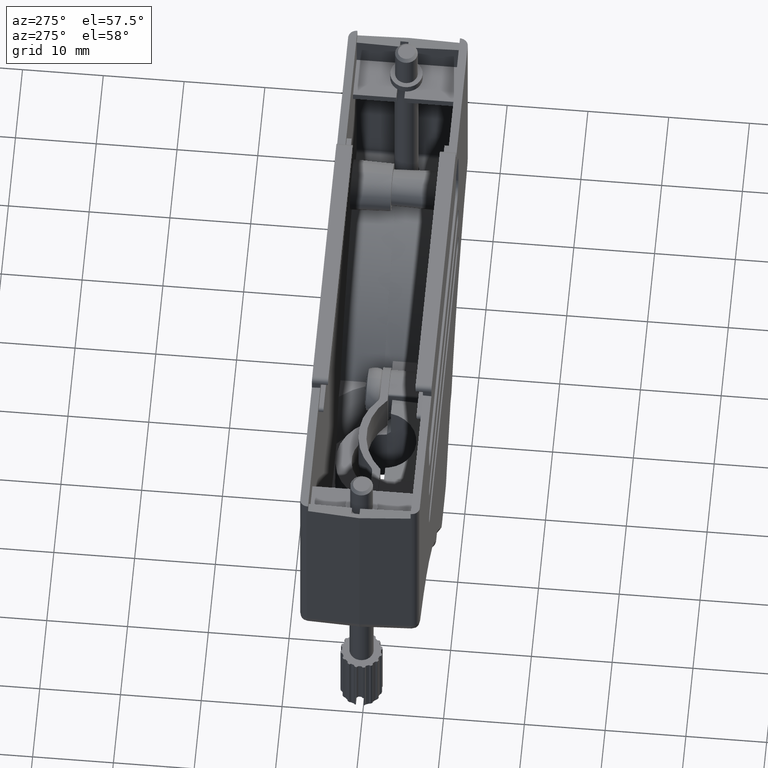
[diagram: clean part render]
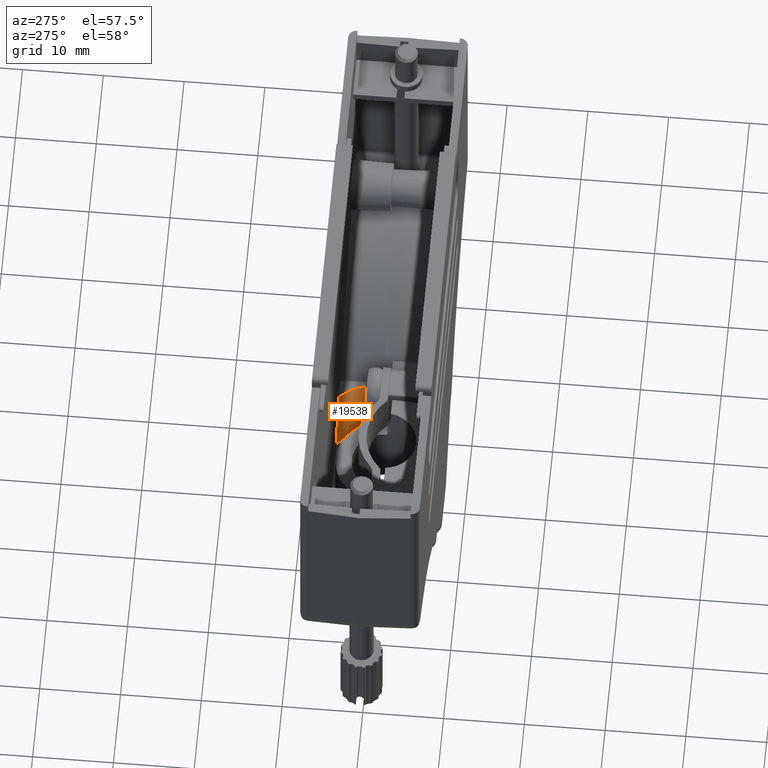
[diagram: same view with one face highlighted and labeled with its STEP entity id]
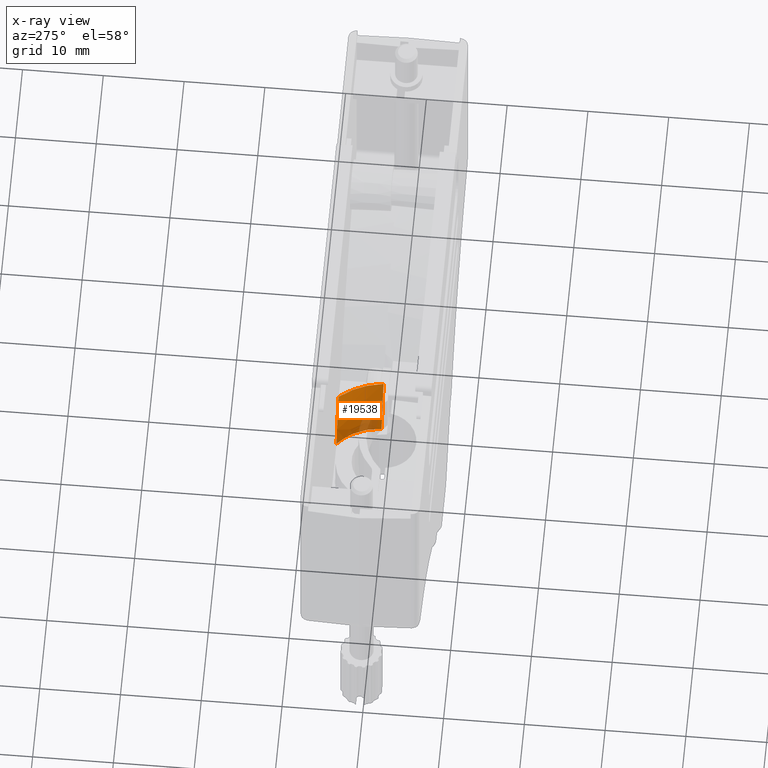
[diagram: x-ray of the same camera — body ghosted, the highlighted face saturated]
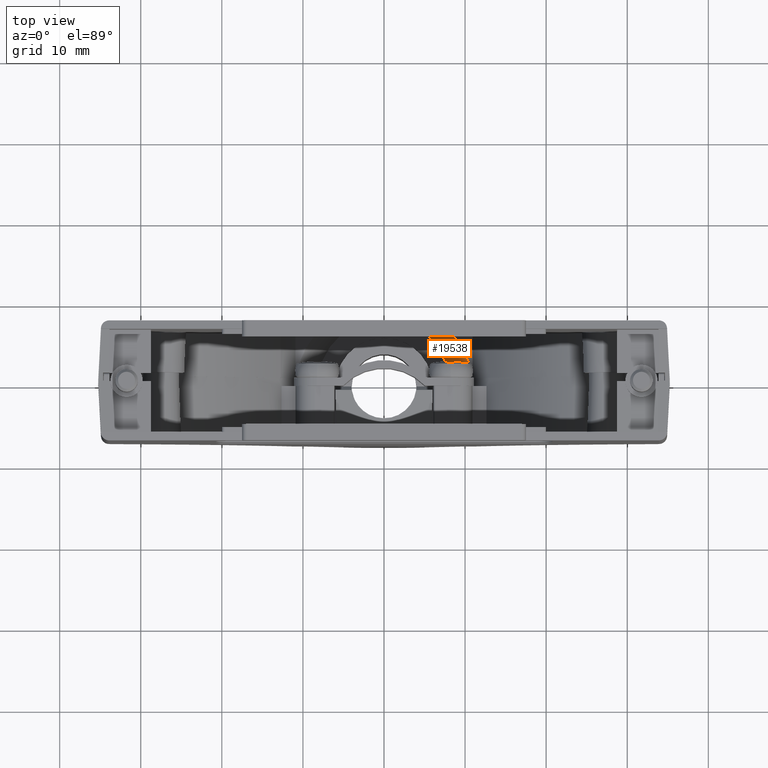
[diagram: same view with one face highlighted and labeled with its STEP entity id]
A machine part, auxiliary view. The second image highlights one B-rep face of the part: STEP entity #19538.
The next image is the same camera in x-ray: the body ghosted, the highlighted face saturated — about 21% of this face is hidden behind the body in this view.
A second angle (top view) of the same face is appended — the face is thin or edge-on in the first view.
In plain terms, the highlighted face is a freeform B-spline surface patch.
Its self-contained STEP definition (entity closure, byte-faithful):
#1 = CARTESIAN_POINT ( 'NONE',  ( -10.85725919416487351, -1.000000000000000000, -43.04999999999999005 ) ) ;
#323 = CARTESIAN_POINT ( 'NONE',  ( -5.547132729910808635, -6.350000000000000533, -48.21871914190508335 ) ) ;
#437 = CARTESIAN_POINT ( 'NONE',  ( -8.054457284883470791, -4.717821101664453565, -46.20518241968404993 ) ) ;
#681 = CARTESIAN_POINT ( 'NONE',  ( -10.85725919416487351, -1.000000000000000000, -43.04999999999999005 ) ) ;
#882 = EDGE_CURVE ( 'NONE', #18026, #10836, #8405, .T. ) ;
#2220 = CARTESIAN_POINT ( 'NONE',  ( -6.784983719650929501, -4.825430919215691006, -48.99999999999999289 ) ) ;
#2277 = CARTESIAN_POINT ( 'NONE',  ( -8.231518383454870857, -2.513654629819616293, -48.83950251665022790 ) ) ;
#2403 = CARTESIAN_POINT ( 'NONE',  ( -10.88303071723839466, -2.334803176006769565, -43.04999999999999005 ) ) ;
#2522 = CARTESIAN_POINT ( 'NONE',  ( -7.144284498985384424, -4.831407660078256505, -49.18780833232322891 ) ) ;
#2618 = CARTESIAN_POINT ( 'NONE',  ( -5.423747366232326783, -6.349999999999999645, -48.99999999573553566 ) ) ;
#2658 = CARTESIAN_POINT ( 'NONE',  ( -8.237255334630070536, 0.000000000000000000, -48.49119670097724111 ) ) ;
#2782 = CARTESIAN_POINT ( 'NONE',  ( -7.202629093705485097, -6.350000000000001421, -44.57662714155681272 ) ) ;
#3191 = EDGE_CURVE ( 'NONE', #23800, #5660, #15226, .T. ) ;
#4030 = CARTESIAN_POINT ( 'NONE',  ( -8.400840119083717639, -1.000000000000000000, -47.95482761851719289 ) ) ;
#4267 = CARTESIAN_POINT ( 'NONE',  ( -8.499999999999998224, -6.349999999999999645, -43.04999999999999005 ) ) ;
#4464 = CARTESIAN_POINT ( 'NONE',  ( -5.683703127045443892, -6.350000000000304290, -47.83664324486022679 ) ) ;
#5397 = ORIENTED_EDGE ( 'NONE', *, *, #882, .F. ) ;
#5461 = CARTESIAN_POINT ( 'NONE',  ( -5.813744610898235798, -6.013417162761451884, -48.99999999999999289 ) ) ;
#5660 = VERTEX_POINT ( 'NONE', #681 ) ;
#6103 = CARTESIAN_POINT ( 'NONE',  ( -8.099452847968404257, -2.529913852893511894, -49.40535651141005502 ) ) ;
#6478 = CARTESIAN_POINT ( 'NONE',  ( -8.650086717710470552, 0.000000000000000000, -47.46631069360344668 ) ) ;
#7155 = CARTESIAN_POINT ( 'NONE',  ( -10.85725919416487351, -1.000000000000000000, -43.04999999999999005 ) ) ;
#7301 = CARTESIAN_POINT ( 'NONE',  ( -5.423747366232326783, -6.349999999999999645, -48.99999999573553566 ) ) ;
#7324 = B_SPLINE_CURVE_WITH_KNOTS ( 'NONE', 3,
 ( #7155, #14658, #20761, #13138, #4030, #9574 ),
 .UNSPECIFIED., .F., .F.,
 ( 4, 2, 4 ),
 ( 8.865777791897565093E-17, 0.003296783173347325822, 0.006593566346694563172 ),
 .UNSPECIFIED. ) ;
#7824 = CARTESIAN_POINT ( 'NONE',  ( -8.921132318018068830, -4.649669166616178906, -44.54550080342831109 ) ) ;
#7938 = CARTESIAN_POINT ( 'NONE',  ( -9.951428576541024640, -2.383580845228455924, -44.51437446529980235 ) ) ;
#8405 = B_SPLINE_CURVE_WITH_KNOTS ( 'NONE', 3,
 ( #9507, #22309, #11587, #15275, #24258, #19069, #13309, #2220, #17213, #13185, #5461, #7301 ),
 .UNSPECIFIED., .F., .F.,
 ( 4, 2, 2, 2, 2, 4 ),
 ( 0.0009949127519470312569, 0.002518865708054175527, 0.004042818664161319797, 0.004804795142214891498, 0.005566771620268462333, 0.007090724576375601398 ),
 .UNSPECIFIED. ) ;
#9009 = ORIENTED_EDGE ( 'NONE', *, *, #14778, .F. ) ;
#9507 = CARTESIAN_POINT ( 'NONE',  ( -8.060847776636807183, -1.000000000000000888, -48.99999999999999289 ) ) ;
#9574 = CARTESIAN_POINT ( 'NONE',  ( -8.060847776636807183, -1.000000000000000888, -48.99999999999999289 ) ) ;
#9810 = CARTESIAN_POINT ( 'NONE',  ( -7.413041487993058176, -4.785973036712737105, -47.96791632580454490 ) ) ;
#9889 = CARTESIAN_POINT ( 'NONE',  ( -8.499999999999998224, -6.350000000000001421, -43.04999999999999005 ) ) ;
#9926 = CARTESIAN_POINT ( 'NONE',  ( -10.92516466526169339, 0.000000000000000000, -43.05000000000000426 ) ) ;
#10049 = CARTESIAN_POINT ( 'NONE',  ( -8.040630700314157053, -6.349999999999999645, -43.53329907736569027 ) ) ;
#10303 = FACE_OUTER_BOUND ( 'NONE', #21584, .T. ) ;
#10738 = CARTESIAN_POINT ( 'NONE',  ( -10.17753453623580562, -3.625625524616261419, -43.04999999999998295 ) ) ;
#10836 = VERTEX_POINT ( 'NONE', #14666 ) ;
#10975 = CARTESIAN_POINT ( 'NONE',  ( -10.79981069139131833, -1.490108943982921152, -43.05000000000000426 ) ) ;
#11558 = CARTESIAN_POINT ( 'NONE',  ( -8.499999999999998224, -6.350000000000001421, -43.04999999999999005 ) ) ;
#11587 = CARTESIAN_POINT ( 'NONE',  ( -7.958285354337889750, -2.010883851552772494, -48.99999999999999289 ) ) ;
#12646 = EDGE_CURVE ( 'NONE', #5660, #18026, #7324, .T. ) ;
#12689 = CARTESIAN_POINT ( 'NONE',  ( -10.43623120140303051, -2.923744230134264210, -43.05000000000001137 ) ) ;
#13041 = CARTESIAN_POINT ( 'NONE',  ( -8.499999999999998224, -6.350000000000001421, -43.04999999999999005 ) ) ;
#13138 = CARTESIAN_POINT ( 'NONE',  ( -8.803526288020481871, -1.000000000000000000, -46.93334071211515379 ) ) ;
#13185 = CARTESIAN_POINT ( 'NONE',  ( -6.165795539250754409, -5.643136104835854816, -49.00000000000000000 ) ) ;
#13309 = CARTESIAN_POINT ( 'NONE',  ( -7.057276121394900237, -4.391018644767680001, -49.00000000000000000 ) ) ;
#13598 = CARTESIAN_POINT ( 'NONE',  ( -10.55877670594142081, -2.351062399080664278, -43.52674577085866048 ) ) ;
#13653 = CARTESIAN_POINT ( 'NONE',  ( -8.060847776636807183, -1.000000000000000888, -48.99999999999999289 ) ) ;
#13721 = B_SPLINE_CURVE_WITH_KNOTS ( 'NONE', 3,
 ( #2618, #19209, #4464, #15892, #19709, #14070, #9889 ),
 .UNSPECIFIED., .F., .F.,
 ( 4, 1, 1, 1, 4 ),
 ( 0.001207010193305332576, 0.001989570535931919036, 0.003977829359494961144, 0.005966088183058004119, 0.007954347006621046226 ),
 .UNSPECIFIED. ) ;
#14070 = CARTESIAN_POINT ( 'NONE',  ( -8.040630700313839085, -6.350000000000335376, -43.53329907736566895 ) ) ;
#14658 = CARTESIAN_POINT ( 'NONE',  ( -10.26646434415762066, -1.000000000000717426, -43.97759670999453618 ) ) ;
#14666 = CARTESIAN_POINT ( 'NONE',  ( -5.423747366232326783, -6.349999999999999645, -48.99999999573553566 ) ) ;
#14778 = EDGE_CURVE ( 'NONE', #10836, #23800, #13721, .T. ) ;
#15226 = B_SPLINE_CURVE_WITH_KNOTS ( 'NONE', 3,
 ( #13041, #20539, #22045, #10738, #16836, #12689, #20305, #10975, #1 ),
 .UNSPECIFIED., .F., .F.,
 ( 4, 2, 2, 1, 4 ),
 ( 0.000000000000000000, 0.4279210825805888629, 0.5349013532257358428, 0.6418816238708828781, 0.8558421651611767267 ),
 .UNSPECIFIED. ) ;
#15275 = CARTESIAN_POINT ( 'NONE',  ( -7.698184786909064492, -3.008066872069044884, -48.99999999999999289 ) ) ;
#15441 = CARTESIAN_POINT ( 'NONE',  ( -10.09337373494054546, 0.000000000000000000, -44.48324812717130783 ) ) ;
#15690 = CARTESIAN_POINT ( 'NONE',  ( -7.050760361828863232, -4.854124971761016205, -49.80267825570503248 ) ) ;
#15809 = CARTESIAN_POINT ( 'NONE',  ( -8.548169340352552936, -2.481136183671826423, -47.71711350970398513 ) ) ;
#15892 = CARTESIAN_POINT ( 'NONE',  ( -6.222767562585033829, -6.350000000000309619, -46.32853071026607239 ) ) ;
#16836 = CARTESIAN_POINT ( 'NONE',  ( -10.26976789524329625, -3.392917353177816508, -43.04999999999999005 ) ) ;
#17213 = CARTESIAN_POINT ( 'NONE',  ( -6.636859269787231064, -5.037084431005960816, -48.99999999999999289 ) ) ;
#17272 = CARTESIAN_POINT ( 'NONE',  ( -6.222767562585389989, -6.349999999999994316, -46.32853071026607239 ) ) ;
#17788 = B_SPLINE_SURFACE_WITH_KNOTS ( 'NONE', 3, 3, ( 
 ( #23310, #15690, #6103, #19370 ),
 ( #19495, #2522, #2277, #2658 ),
 ( #323, #9810, #15809, #6478 ),
 ( #17272, #437, #21482, #23065 ),
 ( #2782, #7824, #7938, #15441 ),
 ( #10049, #22936, #13598, #21110 ),
 ( #4267, #19255, #2403, #9926 ) ),
 .UNSPECIFIED., .F., .F., .F.,
 ( 4, 1, 1, 1, 4 ),
 ( 4, 4 ),
 ( 0.2886558361617951873, 0.4664918771213464321, 0.6443279180808976214, 0.8221639590404488107, 1.000000000000000000 ),
 ( 0.000000000000000000, 1.000000000000000000 ),
 .UNSPECIFIED. ) ;
#18026 = VERTEX_POINT ( 'NONE', #13653 ) ;
#19069 = CARTESIAN_POINT ( 'NONE',  ( -7.181536144706845093, -4.168437574213458952, -49.00000000000051870 ) ) ;
#19209 = CARTESIAN_POINT ( 'NONE',  ( -5.474417026438164413, -6.350000000000298961, -48.74249861925372329 ) ) ;
#19255 = CARTESIAN_POINT ( 'NONE',  ( -10.02497535653072802, -4.581517231567898030, -43.04999999999999005 ) ) ;
#19370 = CARTESIAN_POINT ( 'NONE',  ( -8.042505171667297503, 0.000000000000000000, -49.00803476711510598 ) ) ;
#19495 = CARTESIAN_POINT ( 'NONE',  ( -5.312078395482099147, -6.349999999999999645, -49.53611414799622281 ) ) ;
#19538 = ADVANCED_FACE ( 'NONE', ( #10303 ), #17788, .F. ) ;
#19709 = CARTESIAN_POINT ( 'NONE',  ( -7.202629093705149366, -6.350000000000329159, -44.57662714155681272 ) ) ;
#20305 = CARTESIAN_POINT ( 'NONE',  ( -10.65876407494445033, -2.214761362164801906, -43.04999999999999716 ) ) ;
#20539 = CARTESIAN_POINT ( 'NONE',  ( -9.152706800245525187, -5.593069257395309357, -43.05000000000000426 ) ) ;
#20761 = CARTESIAN_POINT ( 'NONE',  ( -9.737177290640516958, -1.000000000000000222, -44.94272156971937449 ) ) ;
#21110 = CARTESIAN_POINT ( 'NONE',  ( -10.64077724068503628, 0.000000000000000000, -43.52346911760516690 ) ) ;
#21482 = CARTESIAN_POINT ( 'NONE',  ( -9.176653071425358021, -2.432358514450138731, -46.08183412910204169 ) ) ;
#21584 = EDGE_LOOP ( 'NONE', ( #23052, #23118, #9009, #5397 ) ) ;
#22045 = CARTESIAN_POINT ( 'NONE',  ( -9.678624296330433197, -4.760610068528189132, -43.04999999999999005 ) ) ;
#22309 = CARTESIAN_POINT ( 'NONE',  ( -8.035012387505148013, -1.507654906688173702, -49.00000000000000711 ) ) ;
#22936 = CARTESIAN_POINT ( 'NONE',  ( -9.636711529367081752, -4.604234543250657730, -43.53002242411216116 ) ) ;
#23052 = ORIENTED_EDGE ( 'NONE', *, *, #12646, .F. ) ;
#23065 = CARTESIAN_POINT ( 'NONE',  ( -9.338068070404743182, 0.000000000000000000, -45.95848583852004765 ) ) ;
#23118 = ORIENTED_EDGE ( 'NONE', *, *, #3191, .F. ) ;
#23310 = CARTESIAN_POINT ( 'NONE',  ( -5.250000000000004441, -6.349999999999999645, -50.19999999999999574 ) ) ;
#23800 = VERTEX_POINT ( 'NONE', #11558 ) ;
#24258 = CARTESIAN_POINT ( 'NONE',  ( -7.519304727583257630, -3.484862156800830668, -49.00000000000051159 ) ) ;